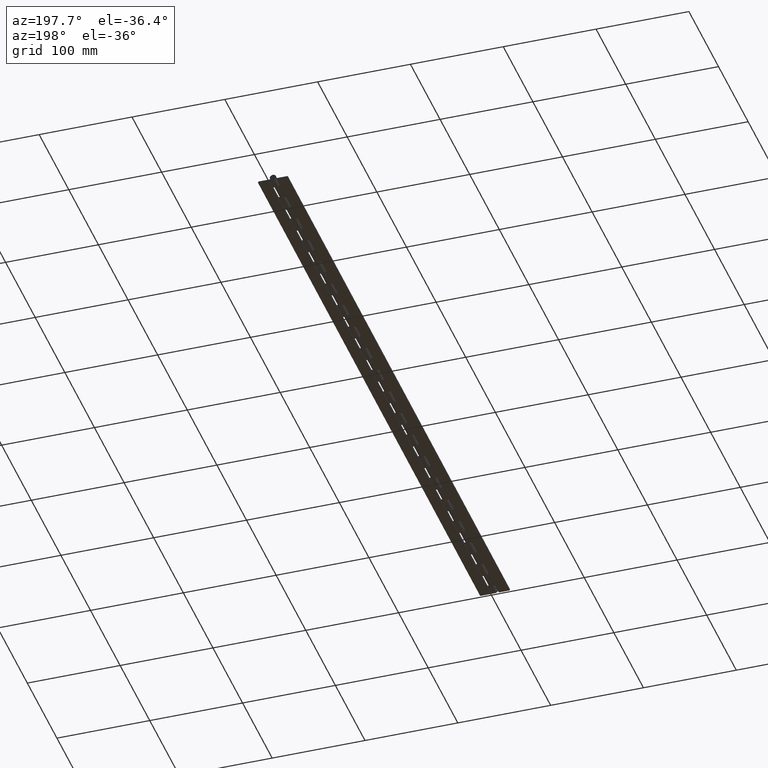
[diagram: clean part render]
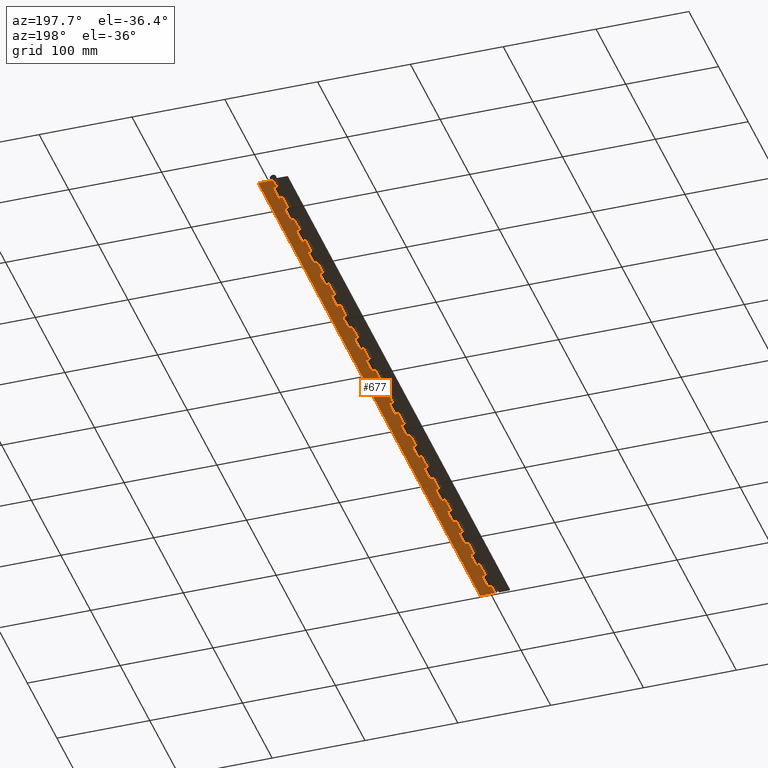
[diagram: same view with one face highlighted and labeled with its STEP entity id]
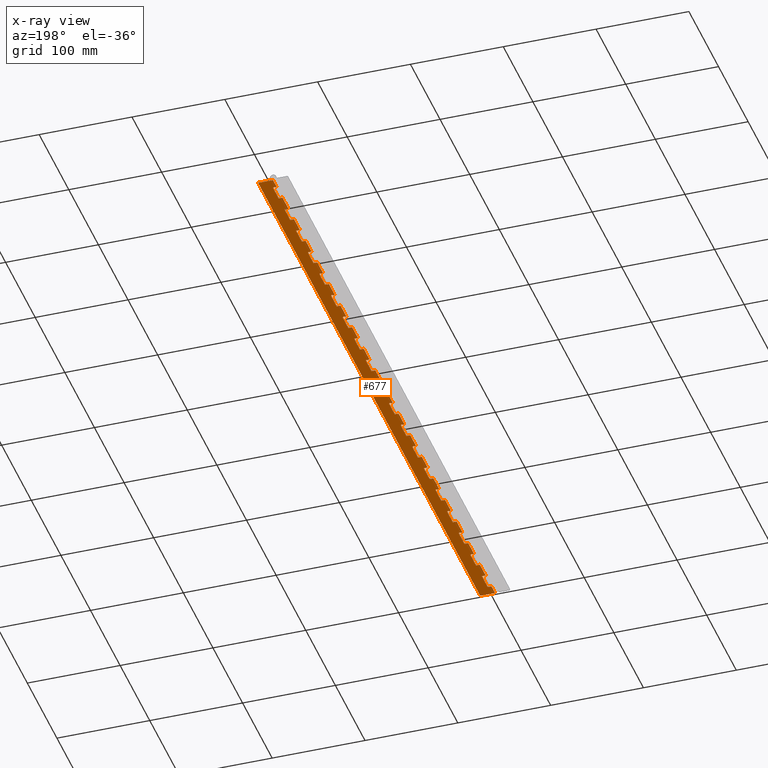
[diagram: x-ray of the same camera — body ghosted, the highlighted face saturated]
A machine part, auxiliary view. The second image highlights one B-rep face of the part: STEP entity #677.
The next image is the same camera in x-ray: the body ghosted, the highlighted face saturated — about 0% of this face is hidden behind the body in this view.
In plain terms, the highlighted planar face has unit normal (0, 0, 1).
Its self-contained STEP definition (entity closure, byte-faithful):
#9 = CARTESIAN_POINT ( 'NONE',  ( 4.000000000000000000, 490.0000000000000600, -3.350002187502757700 ) ) ;
#28 = CARTESIAN_POINT ( 'NONE',  ( -3.350002187502757700, 529.2000000000000500, -3.350002187502757700 ) ) ;
#41 = VECTOR ( 'NONE', #2990, 1000.000000000000000 ) ;
#44 = VECTOR ( 'NONE', #786, 1000.000000000000000 ) ;
#67 = VERTEX_POINT ( 'NONE', #7919 ) ;
#94 = ORIENTED_EDGE ( 'NONE', *, *, #378, .F. ) ;
#99 = VERTEX_POINT ( 'NONE', #8145 ) ;
#107 = DIRECTION ( 'NONE',  ( -0.0000000000000000000, -1.000000000000000000, -0.0000000000000000000 ) ) ;
#117 = EDGE_CURVE ( 'NONE', #5105, #6591, #3216, .T. ) ;
#122 = LINE ( 'NONE', #3463, #3291 ) ;
#130 = CARTESIAN_POINT ( 'NONE',  ( 0.0000000000000000000, 725.2000000000000500, -3.350002187502755900 ) ) ;
#132 = VECTOR ( 'NONE', #3045, 1000.000000000000000 ) ;
#133 = VECTOR ( 'NONE', #2257, 1000.000000000000000 ) ;
#161 = CARTESIAN_POINT ( 'NONE',  ( 0.0000000000000000000, 725.2000000000000500, -3.350002187502755900 ) ) ;
#170 = VERTEX_POINT ( 'NONE', #7888 ) ;
#178 = CARTESIAN_POINT ( 'NONE',  ( 16.00000000000000000, 666.4000000000000900, -3.350002187502757700 ) ) ;
#179 = CARTESIAN_POINT ( 'NONE',  ( -3.350002187502757700, 137.2000000000000200, -3.350002187502757700 ) ) ;
#185 = EDGE_CURVE ( 'NONE', #1284, #5581, #7776, .T. ) ;
#191 = DIRECTION ( 'NONE',  ( -1.000000000000000000, -0.0000000000000000000, -0.0000000000000000000 ) ) ;
#197 = VERTEX_POINT ( 'NONE', #4689 ) ;
#203 = LINE ( 'NONE', #28, #3989 ) ;
#235 = EDGE_CURVE ( 'NONE', #779, #7877, #5644, .T. ) ;
#241 = LINE ( 'NONE', #2359, #41 ) ;
#248 = DIRECTION ( 'NONE',  ( -1.000000000000000000, -0.0000000000000000000, -0.0000000000000000000 ) ) ;
#252 = CARTESIAN_POINT ( 'NONE',  ( 0.0000000000000000000, 725.2000000000000500, -3.350002187502755900 ) ) ;
#261 = VECTOR ( 'NONE', #4199, 1000.000000000000000 ) ;
#262 = EDGE_CURVE ( 'NONE', #4685, #3206, #2222, .T. ) ;
#266 = DIRECTION ( 'NONE',  ( 1.000000000000000000, 0.0000000000000000000, -1.084202172485504400E-016 ) ) ;
#268 = EDGE_CURVE ( 'NONE', #7197, #99, #5432, .T. ) ;
#294 = ORIENTED_EDGE ( 'NONE', *, *, #1095, .T. ) ;
#313 = CARTESIAN_POINT ( 'NONE',  ( 0.0000000000000000000, 725.2000000000000500, -3.350002187502755900 ) ) ;
#358 = VECTOR ( 'NONE', #1997, 1000.000000000000000 ) ;
#378 = EDGE_CURVE ( 'NONE', #67, #6447, #6340, .T. ) ;
#409 = ORIENTED_EDGE ( 'NONE', *, *, #6329, .T. ) ;
#411 = LINE ( 'NONE', #1567, #5299 ) ;
#428 = VECTOR ( 'NONE', #8227, 1000.000000000000000 ) ;
#436 = LINE ( 'NONE', #6008, #1919 ) ;
#446 = VECTOR ( 'NONE', #2661, 1000.000000000000000 ) ;
#450 = CARTESIAN_POINT ( 'NONE',  ( 0.0000000000000000000, 274.4000000000000300, -3.350002187502757700 ) ) ;
#457 = DIRECTION ( 'NONE',  ( 1.000000000000000000, 0.0000000000000000000, -1.084202172485504400E-016 ) ) ;
#460 = VECTOR ( 'NONE', #457, 1000.000000000000000 ) ;
#470 = CARTESIAN_POINT ( 'NONE',  ( 0.0000000000000000000, 0.0000000000000000000, -3.350002187502757700 ) ) ;
#486 = ORIENTED_EDGE ( 'NONE', *, *, #4323, .F. ) ;
#491 = VERTEX_POINT ( 'NONE', #5049 ) ;
#520 = LINE ( 'NONE', #7775, #3708 ) ;
#525 = VERTEX_POINT ( 'NONE', #7872 ) ;
#528 = EDGE_CURVE ( 'NONE', #5847, #8156, #8168, .T. ) ;
#529 = VECTOR ( 'NONE', #107, 1000.000000000000000 ) ;
#560 = DIRECTION ( 'NONE',  ( -0.0000000000000000000, -1.000000000000000000, -0.0000000000000000000 ) ) ;
#567 = LINE ( 'NONE', #890, #7198 ) ;
#597 = VERTEX_POINT ( 'NONE', #3204 ) ;
#642 = ORIENTED_EDGE ( 'NONE', *, *, #7834, .F. ) ;
#654 = LINE ( 'NONE', #6780, #261 ) ;
#677 = ADVANCED_FACE ( 'NONE', ( #5221 ), #5599, .F. ) ;
#717 = CARTESIAN_POINT ( 'NONE',  ( 0.0000000000000000000, 372.4000000000000900, -3.350002187502757700 ) ) ;
#725 = LINE ( 'NONE', #7945, #7579 ) ;
#730 = EDGE_CURVE ( 'NONE', #7492, #1888, #3104, .T. ) ;
#735 = LINE ( 'NONE', #7809, #7389 ) ;
#746 = DIRECTION ( 'NONE',  ( 1.770125995894701000E-016, 1.000000000000000000, -0.0000000000000000000 ) ) ;
#766 = CARTESIAN_POINT ( 'NONE',  ( 0.0000000000000000000, 725.2000000000000500, -3.350002187502755900 ) ) ;
#769 = EDGE_CURVE ( 'NONE', #1523, #6473, #2705, .T. ) ;
#779 = VERTEX_POINT ( 'NONE', #7676 ) ;
#786 = DIRECTION ( 'NONE',  ( -0.0000000000000000000, -1.000000000000000000, -0.0000000000000000000 ) ) ;
#792 = ORIENTED_EDGE ( 'NONE', *, *, #2078, .T. ) ;
#799 = VECTOR ( 'NONE', #266, 1000.000000000000000 ) ;
#817 = CARTESIAN_POINT ( 'NONE',  ( 4.000000000000000000, 19.60000000000000100, -3.350002187502757700 ) ) ;
#826 = VECTOR ( 'NONE', #8035, 1000.000000000000000 ) ;
#832 = CARTESIAN_POINT ( 'NONE',  ( 3.999999999999996400, 627.2000000000000500, -3.350002187502756400 ) ) ;
#836 = VECTOR ( 'NONE', #7599, 1000.000000000000000 ) ;
#844 = VECTOR ( 'NONE', #3941, 1000.000000000000000 ) ;
#884 = CARTESIAN_POINT ( 'NONE',  ( 4.000000000000000000, 19.60000000000000100, -3.350002187502757700 ) ) ;
#890 = CARTESIAN_POINT ( 'NONE',  ( 16.00000000000000000, 156.8000000000000400, -3.350002187502757700 ) ) ;
#911 = ORIENTED_EDGE ( 'NONE', *, *, #1279, .T. ) ;
#936 = VERTEX_POINT ( 'NONE', #3135 ) ;
#951 = CARTESIAN_POINT ( 'NONE',  ( 4.000000000000000000, 686.0000000000000000, -3.350002187502757700 ) ) ;
#974 = DIRECTION ( 'NONE',  ( 1.000000000000000000, 0.0000000000000000000, -1.084202172485504400E-016 ) ) ;
#975 = VERTEX_POINT ( 'NONE', #5905 ) ;
#990 = DIRECTION ( 'NONE',  ( 1.000000000000000000, 0.0000000000000000000, -1.084202172485504400E-016 ) ) ;
#1013 = VERTEX_POINT ( 'NONE', #2239 ) ;
#1014 = VECTOR ( 'NONE', #7023, 1000.000000000000000 ) ;
#1018 = VECTOR ( 'NONE', #6839, 1000.000000000000000 ) ;
#1036 = CARTESIAN_POINT ( 'NONE',  ( -3.350002187502757700, 568.3999999999999800, -3.350002187502757700 ) ) ;
#1037 = VECTOR ( 'NONE', #2485, 1000.000000000000000 ) ;
#1051 = DIRECTION ( 'NONE',  ( -1.000000000000000000, -0.0000000000000000000, -0.0000000000000000000 ) ) ;
#1063 = VERTEX_POINT ( 'NONE', #3361 ) ;
#1064 = VERTEX_POINT ( 'NONE', #3513 ) ;
#1085 = CARTESIAN_POINT ( 'NONE',  ( 3.999999999999996400, 156.8000000000000400, -3.350002187502756400 ) ) ;
#1095 = EDGE_CURVE ( 'NONE', #1149, #6447, #5213, .T. ) ;
#1102 = LINE ( 'NONE', #7959, #2590 ) ;
#1105 = ORIENTED_EDGE ( 'NONE', *, *, #769, .F. ) ;
#1114 = CARTESIAN_POINT ( 'NONE',  ( 0.0000000000000000000, 725.2000000000000500, -3.350002187502755900 ) ) ;
#1118 = VECTOR ( 'NONE', #1276, 1000.000000000000000 ) ;
#1149 = VERTEX_POINT ( 'NONE', #5428 ) ;
#1150 = EDGE_CURVE ( 'NONE', #6512, #6761, #8057, .T. ) ;
#1202 = EDGE_CURVE ( 'NONE', #67, #2339, #1598, .T. ) ;
#1219 = CARTESIAN_POINT ( 'NONE',  ( 4.000000000000000000, 568.3999999999999800, -3.350002187502757700 ) ) ;
#1229 = LINE ( 'NONE', #6541, #6150 ) ;
#1247 = DIRECTION ( 'NONE',  ( 1.770125995894701000E-016, 1.000000000000000000, -0.0000000000000000000 ) ) ;
#1249 = LINE ( 'NONE', #4668, #7497 ) ;
#1250 = EDGE_CURVE ( 'NONE', #5283, #6710, #2306, .T. ) ;
#1261 = LINE ( 'NONE', #4191, #4456 ) ;
#1276 = DIRECTION ( 'NONE',  ( -0.0000000000000000000, -1.000000000000000000, -0.0000000000000000000 ) ) ;
#1279 = EDGE_CURVE ( 'NONE', #6837, #3571, #7245, .T. ) ;
#1284 = VERTEX_POINT ( 'NONE', #951 ) ;
#1296 = CARTESIAN_POINT ( 'NONE',  ( -3.350002187502757700, 725.2000000000000500, -3.350002187502757700 ) ) ;
#1306 = EDGE_CURVE ( 'NONE', #7746, #5581, #1898, .T. ) ;
#1319 = DIRECTION ( 'NONE',  ( 1.770125995894701000E-016, 1.000000000000000000, -0.0000000000000000000 ) ) ;
#1349 = CARTESIAN_POINT ( 'NONE',  ( 4.000000000000000000, 137.2000000000000200, -3.350002187502757700 ) ) ;
#1357 = EDGE_CURVE ( 'NONE', #6710, #1284, #4712, .T. ) ;
#1364 = CARTESIAN_POINT ( 'NONE',  ( 0.0000000000000000000, 39.20000000000000300, -3.350002187502757700 ) ) ;
#1371 = VERTEX_POINT ( 'NONE', #1667 ) ;
#1378 = ORIENTED_EDGE ( 'NONE', *, *, #3376, .T. ) ;
#1396 = CARTESIAN_POINT ( 'NONE',  ( 3.999999999999996400, 705.6000000000001400, -3.350002187502756400 ) ) ;
#1423 = LINE ( 'NONE', #7189, #2915 ) ;
#1426 = EDGE_CURVE ( 'NONE', #597, #7197, #1102, .T. ) ;
#1439 = VERTEX_POINT ( 'NONE', #6789 ) ;
#1445 = LINE ( 'NONE', #7831, #8095 ) ;
#1471 = EDGE_CURVE ( 'NONE', #2703, #3403, #5617, .T. ) ;
#1489 = ORIENTED_EDGE ( 'NONE', *, *, #3255, .T. ) ;
#1499 = VECTOR ( 'NONE', #4186, 1000.000000000000000 ) ;
#1523 = VERTEX_POINT ( 'NONE', #2313 ) ;
#1555 = LINE ( 'NONE', #179, #3046 ) ;
#1567 = CARTESIAN_POINT ( 'NONE',  ( -3.350002187502754100, 0.0000000000000000000, -3.350002187502757700 ) ) ;
#1569 = VERTEX_POINT ( 'NONE', #8231 ) ;
#1576 = VERTEX_POINT ( 'NONE', #6927 ) ;
#1589 = CARTESIAN_POINT ( 'NONE',  ( 4.000000000000000000, 58.80000000000000400, -3.350002187502757700 ) ) ;
#1598 = LINE ( 'NONE', #7371, #6129 ) ;
#1606 = DIRECTION ( 'NONE',  ( -1.000000000000000000, 0.0000000000000000000, 1.084202172485504400E-016 ) ) ;
#1641 = VERTEX_POINT ( 'NONE', #2250 ) ;
#1644 = DIRECTION ( 'NONE',  ( 1.770125995894701000E-016, 1.000000000000000000, -0.0000000000000000000 ) ) ;
#1647 = CARTESIAN_POINT ( 'NONE',  ( 16.00000000000000000, 274.4000000000000300, -3.350002187502757700 ) ) ;
#1667 = CARTESIAN_POINT ( 'NONE',  ( 0.0000000000000000000, 352.8000000000000700, -3.350002187502757700 ) ) ;
#1697 = LINE ( 'NONE', #7630, #8158 ) ;
#1700 = EDGE_CURVE ( 'NONE', #5270, #5105, #411, .T. ) ;
#1742 = EDGE_CURVE ( 'NONE', #5433, #4373, #203, .T. ) ;
#1746 = DIRECTION ( 'NONE',  ( -0.0000000000000000000, -1.000000000000000000, -0.0000000000000000000 ) ) ;
#1820 = DIRECTION ( 'NONE',  ( 1.000000000000000000, 0.0000000000000000000, -1.084202172485504400E-016 ) ) ;
#1826 = LINE ( 'NONE', #3508, #3722 ) ;
#1835 = VECTOR ( 'NONE', #1644, 1000.000000000000000 ) ;
#1837 = ORIENTED_EDGE ( 'NONE', *, *, #235, .T. ) ;
#1847 = VERTEX_POINT ( 'NONE', #8207 ) ;
#1888 = VERTEX_POINT ( 'NONE', #5509 ) ;
#1898 = LINE ( 'NONE', #1114, #5307 ) ;
#1919 = VECTOR ( 'NONE', #4088, 1000.000000000000000 ) ;
#1927 = CARTESIAN_POINT ( 'NONE',  ( 0.0000000000000000000, 725.2000000000000500, -3.350002187502755900 ) ) ;
#1931 = DIRECTION ( 'NONE',  ( -1.000000000000000000, -0.0000000000000000000, -0.0000000000000000000 ) ) ;
#1957 = VECTOR ( 'NONE', #8140, 1000.000000000000000 ) ;
#1969 = CARTESIAN_POINT ( 'NONE',  ( 4.000000000000000000, 529.2000000000000500, -3.350002187502757700 ) ) ;
#1981 = VERTEX_POINT ( 'NONE', #1589 ) ;
#1997 = DIRECTION ( 'NONE',  ( 1.770125995894701000E-016, 1.000000000000000000, -0.0000000000000000000 ) ) ;
#2002 = CARTESIAN_POINT ( 'NONE',  ( 0.0000000000000000000, 215.6000000000000500, -3.350002187502757700 ) ) ;
#2003 = LINE ( 'NONE', #4033, #5218 ) ;
#2017 = VECTOR ( 'NONE', #3779, 1000.000000000000000 ) ;
#2067 = EDGE_CURVE ( 'NONE', #2481, #7877, #4596, .T. ) ;
#2074 = ORIENTED_EDGE ( 'NONE', *, *, #4602, .F. ) ;
#2078 = EDGE_CURVE ( 'NONE', #5712, #779, #2681, .T. ) ;
#2084 = EDGE_CURVE ( 'NONE', #7167, #7492, #6472, .T. ) ;
#2092 = EDGE_LOOP ( 'NONE', ( #2751, #2568, #5738, #5990, #5604, #2729, #2074, #5513, #2143, #8335, #4966, #7138, #5308, #5582, #486, #3615, #2376, #3677, #642, #8328, #911, #7897, #2974, #6058, #3484, #4919, #6900, #6687, #8169, #294, #94, #3633, #6402, #1489, #4145, #6122, #3931, #4397, #1105, #8217, #3056, #6029, #3265, #8039, #3225, #7729, #7251, #7098, #792, #1837, #5202, #5817, #2854, #5878, #7365, #1378, #2675, #2822, #7325, #5036, #7424, #4810, #6360, #4028, #3695, #4163, #5476, #6744, #4176, #3772, #2433, #409, #6334, #4164, #6112, #7690, #6972, #8249, #7004, #6577 ) ) ;
#2106 = CARTESIAN_POINT ( 'NONE',  ( -3.350002187502757700, 411.6000000000000800, -3.350002187502757700 ) ) ;
#2143 = ORIENTED_EDGE ( 'NONE', *, *, #117, .T. ) ;
#2189 = DIRECTION ( 'NONE',  ( 1.770125995894701000E-016, 1.000000000000000000, -0.0000000000000000000 ) ) ;
#2193 = VERTEX_POINT ( 'NONE', #832 ) ;
#2209 = LINE ( 'NONE', #4665, #7359 ) ;
#2222 = LINE ( 'NONE', #2279, #7375 ) ;
#2238 = DIRECTION ( 'NONE',  ( 1.084202172485504400E-016, -0.0000000000000000000, 1.000000000000000000 ) ) ;
#2239 = CARTESIAN_POINT ( 'NONE',  ( 0.0000000000000000000, 98.00000000000001400, -3.350002187502757700 ) ) ;
#2250 = CARTESIAN_POINT ( 'NONE',  ( 0.0000000000000000000, 333.2000000000000500, -3.350002187502757700 ) ) ;
#2257 = DIRECTION ( 'NONE',  ( 1.770125995894701000E-016, 1.000000000000000000, -0.0000000000000000000 ) ) ;
#2273 = CARTESIAN_POINT ( 'NONE',  ( 4.000000000000000000, 98.00000000000001400, -3.350002187502757700 ) ) ;
#2279 = CARTESIAN_POINT ( 'NONE',  ( 16.00000000000000000, 588.0000000000001100, -3.350002187502757700 ) ) ;
#2306 = LINE ( 'NONE', #178, #799 ) ;
#2313 = CARTESIAN_POINT ( 'NONE',  ( 0.0000000000000000000, 313.6000000000000200, -3.350002187502757700 ) ) ;
#2325 = VECTOR ( 'NONE', #6619, 1000.000000000000000 ) ;
#2335 = CARTESIAN_POINT ( 'NONE',  ( 3.999999999999996400, 39.20000000000001000, -3.350002187502756400 ) ) ;
#2339 = VERTEX_POINT ( 'NONE', #5455 ) ;
#2359 = CARTESIAN_POINT ( 'NONE',  ( 16.00000000000000000, 470.4000000000000300, -3.350002187502757700 ) ) ;
#2376 = ORIENTED_EDGE ( 'NONE', *, *, #5242, .T. ) ;
#2385 = CARTESIAN_POINT ( 'NONE',  ( 16.00000000000000000, 352.8000000000000700, -3.350002187502757700 ) ) ;
#2396 = VECTOR ( 'NONE', #5389, 1000.000000000000000 ) ;
#2415 = CARTESIAN_POINT ( 'NONE',  ( -6.153854184092820600E-016, -12.40000000000000000, -3.350002187502755900 ) ) ;
#2417 = LINE ( 'NONE', #5866, #446 ) ;
#2428 = LINE ( 'NONE', #2775, #5654 ) ;
#2433 = ORIENTED_EDGE ( 'NONE', *, *, #2850, .F. ) ;
#2449 = EDGE_CURVE ( 'NONE', #6702, #6837, #3844, .T. ) ;
#2476 = CARTESIAN_POINT ( 'NONE',  ( 3.999999999999996400, 352.8000000000000700, -3.350002187502756400 ) ) ;
#2481 = VERTEX_POINT ( 'NONE', #6216 ) ;
#2485 = DIRECTION ( 'NONE',  ( 1.000000000000000000, 0.0000000000000000000, -1.084202172485504400E-016 ) ) ;
#2568 = ORIENTED_EDGE ( 'NONE', *, *, #7886, .T. ) ;
#2590 = VECTOR ( 'NONE', #6083, 1000.000000000000000 ) ;
#2606 = LINE ( 'NONE', #4607, #1118 ) ;
#2637 = DIRECTION ( 'NONE',  ( 1.770125995894701000E-016, 1.000000000000000000, -0.0000000000000000000 ) ) ;
#2661 = DIRECTION ( 'NONE',  ( -1.000000000000000000, -0.0000000000000000000, -0.0000000000000000000 ) ) ;
#2675 = ORIENTED_EDGE ( 'NONE', *, *, #3060, .T. ) ;
#2680 = CARTESIAN_POINT ( 'NONE',  ( 16.00000000000000000, 509.6000000000000800, -3.350002187502757700 ) ) ;
#2681 = LINE ( 'NONE', #8104, #3246 ) ;
#2686 = VERTEX_POINT ( 'NONE', #717 ) ;
#2691 = EDGE_CURVE ( 'NONE', #4577, #1149, #3322, .T. ) ;
#2695 = DIRECTION ( 'NONE',  ( 1.770125995894701000E-016, 1.000000000000000000, -0.0000000000000000000 ) ) ;
#2703 = VERTEX_POINT ( 'NONE', #1364 ) ;
#2705 = LINE ( 'NONE', #7817, #1014 ) ;
#2712 = LINE ( 'NONE', #3590, #1018 ) ;
#2729 = ORIENTED_EDGE ( 'NONE', *, *, #7244, .F. ) ;
#2740 = LINE ( 'NONE', #6173, #4255 ) ;
#2746 = EDGE_CURVE ( 'NONE', #6383, #8156, #1445, .T. ) ;
#2751 = ORIENTED_EDGE ( 'NONE', *, *, #1150, .T. ) ;
#2755 = EDGE_CURVE ( 'NONE', #6107, #7047, #3130, .T. ) ;
#2775 = CARTESIAN_POINT ( 'NONE',  ( 4.000000000000000000, 333.2000000000000500, -3.350002187502757700 ) ) ;
#2805 = VECTOR ( 'NONE', #3805, 1000.000000000000000 ) ;
#2820 = EDGE_CURVE ( 'NONE', #3577, #5712, #1249, .T. ) ;
#2822 = ORIENTED_EDGE ( 'NONE', *, *, #2746, .T. ) ;
#2850 = EDGE_CURVE ( 'NONE', #3690, #1439, #4034, .T. ) ;
#2854 = ORIENTED_EDGE ( 'NONE', *, *, #7076, .T. ) ;
#2911 = VECTOR ( 'NONE', #7131, 1000.000000000000000 ) ;
#2915 = VECTOR ( 'NONE', #3951, 1000.000000000000000 ) ;
#2918 = CARTESIAN_POINT ( 'NONE',  ( 3.999999999999996400, 666.4000000000000900, -3.350002187502756400 ) ) ;
#2926 = LINE ( 'NONE', #6337, #5942 ) ;
#2931 = VECTOR ( 'NONE', #4611, 1000.000000000000000 ) ;
#2953 = DIRECTION ( 'NONE',  ( 1.770125995894701000E-016, 1.000000000000000000, -0.0000000000000000000 ) ) ;
#2969 = VERTEX_POINT ( 'NONE', #7706 ) ;
#2974 = ORIENTED_EDGE ( 'NONE', *, *, #2755, .F. ) ;
#2990 = DIRECTION ( 'NONE',  ( 1.000000000000000000, 0.0000000000000000000, -1.084202172485504400E-016 ) ) ;
#2993 = LINE ( 'NONE', #5082, #4509 ) ;
#3007 = VECTOR ( 'NONE', #6157, 1000.000000000000000 ) ;
#3027 = CARTESIAN_POINT ( 'NONE',  ( 3.999999999999996400, 117.6000000000000400, -3.350002187502756400 ) ) ;
#3045 = DIRECTION ( 'NONE',  ( -0.0000000000000000000, -1.000000000000000000, -0.0000000000000000000 ) ) ;
#3046 = VECTOR ( 'NONE', #3993, 1000.000000000000000 ) ;
#3056 = ORIENTED_EDGE ( 'NONE', *, *, #6576, .T. ) ;
#3060 = EDGE_CURVE ( 'NONE', #491, #6383, #735, .T. ) ;
#3098 = CARTESIAN_POINT ( 'NONE',  ( 0.0000000000000000000, 254.8000000000000400, -3.350002187502757700 ) ) ;
#3104 = LINE ( 'NONE', #5457, #6335 ) ;
#3130 = LINE ( 'NONE', #766, #2931 ) ;
#3135 = CARTESIAN_POINT ( 'NONE',  ( 3.999999999999996400, 78.40000000000002000, -3.350002187502756400 ) ) ;
#3183 = CARTESIAN_POINT ( 'NONE',  ( 0.0000000000000000000, 196.0000000000000300, -3.350002187502757700 ) ) ;
#3204 = CARTESIAN_POINT ( 'NONE',  ( 0.0000000000000000000, 548.8000000000000700, -3.350002187502757700 ) ) ;
#3206 = VERTEX_POINT ( 'NONE', #3443 ) ;
#3216 = LINE ( 'NONE', #817, #4739 ) ;
#3225 = ORIENTED_EDGE ( 'NONE', *, *, #5632, .T. ) ;
#3246 = VECTOR ( 'NONE', #4908, 1000.000000000000000 ) ;
#3255 = EDGE_CURVE ( 'NONE', #4410, #5810, #6156, .T. ) ;
#3265 = ORIENTED_EDGE ( 'NONE', *, *, #4048, .F. ) ;
#3270 = DIRECTION ( 'NONE',  ( 1.000000000000000000, 0.0000000000000000000, 0.0000000000000000000 ) ) ;
#3291 = VECTOR ( 'NONE', #8001, 1000.000000000000000 ) ;
#3322 = LINE ( 'NONE', #5849, #358 ) ;
#3361 = CARTESIAN_POINT ( 'NONE',  ( 4.000000000000000000, 176.4000000000000300, -3.350002187502757700 ) ) ;
#3376 = EDGE_CURVE ( 'NONE', #1576, #491, #241, .T. ) ;
#3403 = VERTEX_POINT ( 'NONE', #3645 ) ;
#3406 = LINE ( 'NONE', #8307, #7970 ) ;
#3443 = CARTESIAN_POINT ( 'NONE',  ( 3.999999999999996400, 588.0000000000001100, -3.350002187502756400 ) ) ;
#3463 = CARTESIAN_POINT ( 'NONE',  ( -3.350002187502757700, 607.6000000000000200, -3.350002187502757700 ) ) ;
#3484 = ORIENTED_EDGE ( 'NONE', *, *, #6242, .T. ) ;
#3508 = CARTESIAN_POINT ( 'NONE',  ( 16.00000000000000000, 737.6000000000000200, -3.350002187502757700 ) ) ;
#3513 = CARTESIAN_POINT ( 'NONE',  ( 4.000000000000000000, 372.4000000000000900, -3.350002187502757700 ) ) ;
#3514 = LINE ( 'NONE', #6721, #133 ) ;
#3524 = EDGE_CURVE ( 'NONE', #5280, #7348, #725, .T. ) ;
#3568 = CARTESIAN_POINT ( 'NONE',  ( 4.000000000000000000, 686.0000000000000000, -3.350002187502757700 ) ) ;
#3571 = VERTEX_POINT ( 'NONE', #7358 ) ;
#3573 = VERTEX_POINT ( 'NONE', #8009 ) ;
#3577 = VERTEX_POINT ( 'NONE', #5418 ) ;
#3590 = CARTESIAN_POINT ( 'NONE',  ( 16.00000000000000000, 313.6000000000000200, -3.350002187502757700 ) ) ;
#3595 = CARTESIAN_POINT ( 'NONE',  ( 4.000000000000000000, 725.2000000000000500, -3.350002187502757700 ) ) ;
#3615 = ORIENTED_EDGE ( 'NONE', *, *, #4265, .T. ) ;
#3625 = CARTESIAN_POINT ( 'NONE',  ( 16.00000000000000000, 117.6000000000000400, -3.350002187502757700 ) ) ;
#3627 = DIRECTION ( 'NONE',  ( 1.770125995894701000E-016, 1.000000000000000000, -0.0000000000000000000 ) ) ;
#3631 = LINE ( 'NONE', #4533, #6863 ) ;
#3633 = ORIENTED_EDGE ( 'NONE', *, *, #1202, .T. ) ;
#3645 = CARTESIAN_POINT ( 'NONE',  ( 0.0000000000000000000, 19.60000000000000100, -3.350002187502757700 ) ) ;
#3647 = CARTESIAN_POINT ( 'NONE',  ( 3.999999999999996400, 548.8000000000000700, -3.350002187502756400 ) ) ;
#3656 = LINE ( 'NONE', #6182, #1957 ) ;
#3664 = CARTESIAN_POINT ( 'NONE',  ( 4.000000000000000000, 646.8000000000000700, -3.350002187502757700 ) ) ;
#3677 = ORIENTED_EDGE ( 'NONE', *, *, #4485, .T. ) ;
#3690 = VERTEX_POINT ( 'NONE', #7475 ) ;
#3695 = ORIENTED_EDGE ( 'NONE', *, *, #268, .T. ) ;
#3701 = VECTOR ( 'NONE', #4537, 1000.000000000000000 ) ;
#3702 = VERTEX_POINT ( 'NONE', #4893 ) ;
#3708 = VECTOR ( 'NONE', #248, 1000.000000000000000 ) ;
#3722 = VECTOR ( 'NONE', #1606, 1000.000000000000000 ) ;
#3760 = CARTESIAN_POINT ( 'NONE',  ( 16.00000000000000000, 627.2000000000000500, -3.350002187502757700 ) ) ;
#3770 = CARTESIAN_POINT ( 'NONE',  ( 4.000000000000000000, 58.80000000000000400, -3.350002187502757700 ) ) ;
#3772 = ORIENTED_EDGE ( 'NONE', *, *, #7539, .T. ) ;
#3779 = DIRECTION ( 'NONE',  ( 1.770125995894701000E-016, 1.000000000000000000, -0.0000000000000000000 ) ) ;
#3805 = DIRECTION ( 'NONE',  ( -0.0000000000000000000, -1.000000000000000000, -0.0000000000000000000 ) ) ;
#3809 = LINE ( 'NONE', #2385, #428 ) ;
#3817 = EDGE_CURVE ( 'NONE', #7167, #5810, #5138, .T. ) ;
#3844 = LINE ( 'NONE', #3625, #460 ) ;
#3846 = LINE ( 'NONE', #2680, #7096 ) ;
#3866 = VERTEX_POINT ( 'NONE', #4429 ) ;
#3867 = EDGE_CURVE ( 'NONE', #4748, #4577, #3406, .T. ) ;
#3874 = EDGE_CURVE ( 'NONE', #5283, #7348, #6239, .T. ) ;
#3897 = LINE ( 'NONE', #1296, #7351 ) ;
#3910 = VECTOR ( 'NONE', #2637, 1000.000000000000000 ) ;
#3931 = ORIENTED_EDGE ( 'NONE', *, *, #730, .T. ) ;
#3941 = DIRECTION ( 'NONE',  ( -0.0000000000000000000, -1.000000000000000000, -0.0000000000000000000 ) ) ;
#3951 = DIRECTION ( 'NONE',  ( 1.000000000000000000, 0.0000000000000000000, -1.084202172485504400E-016 ) ) ;
#3957 = EDGE_CURVE ( 'NONE', #3573, #5433, #5641, .T. ) ;
#3975 = EDGE_CURVE ( 'NONE', #597, #4373, #7368, .T. ) ;
#3989 = VECTOR ( 'NONE', #5016, 1000.000000000000000 ) ;
#3993 = DIRECTION ( 'NONE',  ( -1.000000000000000000, -0.0000000000000000000, -0.0000000000000000000 ) ) ;
#3999 = EDGE_CURVE ( 'NONE', #1064, #2686, #2417, .T. ) ;
#4010 = LINE ( 'NONE', #2415, #7259 ) ;
#4028 = ORIENTED_EDGE ( 'NONE', *, *, #1426, .T. ) ;
#4034 = LINE ( 'NONE', #4353, #836 ) ;
#4033 = CARTESIAN_POINT ( 'NONE',  ( -3.350002187502757700, 176.4000000000000300, -3.350002187502757700 ) ) ;
#4048 = EDGE_CURVE ( 'NONE', #1371, #1641, #5149, .T. ) ;
#4066 = CARTESIAN_POINT ( 'NONE',  ( 0.0000000000000000000, 725.2000000000000500, -3.350002187502757700 ) ) ;
#4088 = DIRECTION ( 'NONE',  ( -1.000000000000000000, -0.0000000000000000000, -0.0000000000000000000 ) ) ;
#4145 = ORIENTED_EDGE ( 'NONE', *, *, #3817, .F. ) ;
#4151 = CARTESIAN_POINT ( 'NONE',  ( -3.350002187502757700, 254.8000000000000400, -3.350002187502757700 ) ) ;
#4163 = ORIENTED_EDGE ( 'NONE', *, *, #8287, .T. ) ;
#4164 = ORIENTED_EDGE ( 'NONE', *, *, #3524, .T. ) ;
#4176 = ORIENTED_EDGE ( 'NONE', *, *, #8282, .T. ) ;
#4186 = DIRECTION ( 'NONE',  ( 1.770125995894701000E-016, 1.000000000000000000, -0.0000000000000000000 ) ) ;
#4191 = CARTESIAN_POINT ( 'NONE',  ( 16.00000000000000000, 431.2000000000001000, -3.350002187502757700 ) ) ;
#4199 = DIRECTION ( 'NONE',  ( 1.770125995894701000E-016, 1.000000000000000000, -0.0000000000000000000 ) ) ;
#4252 = LINE ( 'NONE', #130, #844 ) ;
#4255 = VECTOR ( 'NONE', #2953, 1000.000000000000000 ) ;
#4265 = EDGE_CURVE ( 'NONE', #8008, #936, #1423, .T. ) ;
#4274 = EDGE_CURVE ( 'NONE', #2193, #5280, #1229, .T. ) ;
#4323 = EDGE_CURVE ( 'NONE', #8008, #5448, #7678, .T. ) ;
#4335 = DIRECTION ( 'NONE',  ( -0.0000000000000000000, -1.000000000000000000, -0.0000000000000000000 ) ) ;
#4344 = DIRECTION ( 'NONE',  ( 1.000000000000000000, 0.0000000000000000000, -1.084202172485504400E-016 ) ) ;
#4346 = EDGE_CURVE ( 'NONE', #975, #197, #5747, .T. ) ;
#4353 = CARTESIAN_POINT ( 'NONE',  ( 0.0000000000000000000, 725.2000000000000500, -3.350002187502755900 ) ) ;
#4370 = CARTESIAN_POINT ( 'NONE',  ( 0.0000000000000000000, 725.2000000000000500, -3.350002187502755900 ) ) ;
#4373 = VERTEX_POINT ( 'NONE', #6654 ) ;
#4375 = EDGE_CURVE ( 'NONE', #1981, #5448, #436, .T. ) ;
#4397 = ORIENTED_EDGE ( 'NONE', *, *, #7483, .T. ) ;
#4410 = VERTEX_POINT ( 'NONE', #8004 ) ;
#4412 = VECTOR ( 'NONE', #1247, 1000.000000000000000 ) ;
#4429 = CARTESIAN_POINT ( 'NONE',  ( 0.0000000000000000000, 176.4000000000000300, -3.350002187502757700 ) ) ;
#4442 = EDGE_CURVE ( 'NONE', #2339, #4410, #8175, .T. ) ;
#4456 = VECTOR ( 'NONE', #6799, 1000.000000000000000 ) ;
#4476 = CARTESIAN_POINT ( 'NONE',  ( 0.0000000000000000000, 411.6000000000000800, -3.350002187502757700 ) ) ;
#4485 = EDGE_CURVE ( 'NONE', #5622, #1013, #4529, .T. ) ;
#4509 = VECTOR ( 'NONE', #5723, 1000.000000000000000 ) ;
#4529 = LINE ( 'NONE', #6808, #3007 ) ;
#4533 = CARTESIAN_POINT ( 'NONE',  ( 0.0000000000000000000, 725.2000000000000500, -3.350002187502755900 ) ) ;
#4537 = DIRECTION ( 'NONE',  ( -1.000000000000000000, -0.0000000000000000000, -0.0000000000000000000 ) ) ;
#4577 = VERTEX_POINT ( 'NONE', #8200 ) ;
#4596 = LINE ( 'NONE', #6224, #6670 ) ;
#4602 = EDGE_CURVE ( 'NONE', #5270, #2969, #6954, .T. ) ;
#4607 = CARTESIAN_POINT ( 'NONE',  ( 0.0000000000000000000, 725.2000000000000500, -3.350002187502755900 ) ) ;
#4611 = DIRECTION ( 'NONE',  ( -0.0000000000000000000, -1.000000000000000000, -0.0000000000000000000 ) ) ;
#4652 = DIRECTION ( 'NONE',  ( -0.0000000000000000000, -1.000000000000000000, -0.0000000000000000000 ) ) ;
#4665 = CARTESIAN_POINT ( 'NONE',  ( -3.350002187502757700, 450.8000000000000700, -3.350002187502757700 ) ) ;
#4668 = CARTESIAN_POINT ( 'NONE',  ( 16.00000000000000000, 392.0000000000000600, -3.350002187502757700 ) ) ;
#4680 = CARTESIAN_POINT ( 'NONE',  ( -3.350002187502757700, 215.6000000000000500, -3.350002187502757700 ) ) ;
#4685 = VERTEX_POINT ( 'NONE', #6320 ) ;
#4689 = CARTESIAN_POINT ( 'NONE',  ( 16.00000000000000000, -12.40000000000000000, -3.350002187502757700 ) ) ;
#4693 = CARTESIAN_POINT ( 'NONE',  ( 0.0000000000000000000, 725.2000000000000500, -3.350002187502755900 ) ) ;
#4709 = EDGE_CURVE ( 'NONE', #7178, #1981, #6338, .T. ) ;
#4712 = LINE ( 'NONE', #3568, #1499 ) ;
#4739 = VECTOR ( 'NONE', #2189, 1000.000000000000000 ) ;
#4748 = VERTEX_POINT ( 'NONE', #3183 ) ;
#4752 = DIRECTION ( 'NONE',  ( -0.0000000000000000000, -1.000000000000000000, -0.0000000000000000000 ) ) ;
#4774 = VECTOR ( 'NONE', #6737, 1000.000000000000000 ) ;
#4810 = ORIENTED_EDGE ( 'NONE', *, *, #1742, .T. ) ;
#4856 = VECTOR ( 'NONE', #4335, 1000.000000000000000 ) ;
#4893 = CARTESIAN_POINT ( 'NONE',  ( 3.999999999999996400, 313.6000000000000200, -3.350002187502756400 ) ) ;
#4908 = DIRECTION ( 'NONE',  ( 1.770125995894701000E-016, 1.000000000000000000, -0.0000000000000000000 ) ) ;
#4913 = CARTESIAN_POINT ( 'NONE',  ( 3.999999999999996400, 392.0000000000000600, -3.350002187502756400 ) ) ;
#4919 = ORIENTED_EDGE ( 'NONE', *, *, #5071, .T. ) ;
#4966 = ORIENTED_EDGE ( 'NONE', *, *, #1471, .F. ) ;
#4975 = EDGE_CURVE ( 'NONE', #4748, #3866, #2606, .T. ) ;
#4981 = CARTESIAN_POINT ( 'NONE',  ( 0.0000000000000000000, 666.4000000000000900, -3.350002187502757700 ) ) ;
#5016 = DIRECTION ( 'NONE',  ( -1.000000000000000000, -0.0000000000000000000, -0.0000000000000000000 ) ) ;
#5023 = EDGE_CURVE ( 'NONE', #1847, #525, #2209, .T. ) ;
#5036 = ORIENTED_EDGE ( 'NONE', *, *, #5583, .T. ) ;
#5043 = LINE ( 'NONE', #6131, #6142 ) ;
#5049 = CARTESIAN_POINT ( 'NONE',  ( 3.999999999999996400, 470.4000000000000300, -3.350002187502756400 ) ) ;
#5057 = LINE ( 'NONE', #6256, #1835 ) ;
#5071 = EDGE_CURVE ( 'NONE', #1063, #3866, #2003, .T. ) ;
#5082 = CARTESIAN_POINT ( 'NONE',  ( 0.0000000000000000000, 725.2000000000000500, -3.350002187502755900 ) ) ;
#5091 = DIRECTION ( 'NONE',  ( 1.000000000000000000, 0.0000000000000000000, -1.084202172485504400E-016 ) ) ;
#5103 = EDGE_CURVE ( 'NONE', #5295, #6578, #6738, .T. ) ;
#5105 = VERTEX_POINT ( 'NONE', #6652 ) ;
#5120 = CARTESIAN_POINT ( 'NONE',  ( 0.0000000000000000000, 646.8000000000000700, -3.350002187502757700 ) ) ;
#5138 = LINE ( 'NONE', #4370, #5535 ) ;
#5149 = LINE ( 'NONE', #161, #44 ) ;
#5202 = ORIENTED_EDGE ( 'NONE', *, *, #2067, .F. ) ;
#5213 = LINE ( 'NONE', #4680, #3701 ) ;
#5218 = VECTOR ( 'NONE', #7941, 1000.000000000000000 ) ;
#5221 = FACE_OUTER_BOUND ( 'NONE', #2092, .T. ) ;
#5232 = CARTESIAN_POINT ( 'NONE',  ( 0.0000000000000000000, 294.0000000000000600, -3.350002187502757700 ) ) ;
#5242 = EDGE_CURVE ( 'NONE', #936, #5622, #3656, .T. ) ;
#5253 = DIRECTION ( 'NONE',  ( -1.000000000000000000, -0.0000000000000000000, -0.0000000000000000000 ) ) ;
#5270 = VERTEX_POINT ( 'NONE', #470 ) ;
#5271 = DIRECTION ( 'NONE',  ( 1.000000000000000000, 0.0000000000000000000, -1.084202172485504400E-016 ) ) ;
#5280 = VERTEX_POINT ( 'NONE', #3664 ) ;
#5283 = VERTEX_POINT ( 'NONE', #4981 ) ;
#5285 = CARTESIAN_POINT ( 'NONE',  ( 4.000000000000000000, 725.2000000000000500, -3.350002187502757700 ) ) ;
#5295 = VERTEX_POINT ( 'NONE', #6945 ) ;
#5299 = VECTOR ( 'NONE', #3270, 1000.000000000000000 ) ;
#5307 = VECTOR ( 'NONE', #1746, 1000.000000000000000 ) ;
#5308 = ORIENTED_EDGE ( 'NONE', *, *, #4709, .T. ) ;
#5313 = DIRECTION ( 'NONE',  ( 1.770125995894701000E-016, 1.000000000000000000, -0.0000000000000000000 ) ) ;
#5357 = CARTESIAN_POINT ( 'NONE',  ( -3.350002187502757700, 686.0000000000000000, -3.350002187502757700 ) ) ;
#5382 = DIRECTION ( 'NONE',  ( -1.000000000000000000, -0.0000000000000000000, -0.0000000000000000000 ) ) ;
#5389 = DIRECTION ( 'NONE',  ( -0.0000000000000000000, -1.000000000000000000, -0.0000000000000000000 ) ) ;
#5400 = CARTESIAN_POINT ( 'NONE',  ( 0.0000000000000000000, 490.0000000000000600, -3.350002187502757700 ) ) ;
#5418 = CARTESIAN_POINT ( 'NONE',  ( 0.0000000000000000000, 392.0000000000000600, -3.350002187502757700 ) ) ;
#5428 = CARTESIAN_POINT ( 'NONE',  ( 4.000000000000000000, 215.6000000000000500, -3.350002187502757700 ) ) ;
#5432 = LINE ( 'NONE', #1219, #2017 ) ;
#5433 = VERTEX_POINT ( 'NONE', #5783 ) ;
#5448 = VERTEX_POINT ( 'NONE', #7099 ) ;
#5455 = CARTESIAN_POINT ( 'NONE',  ( 3.999999999999996400, 235.2000000000000200, -3.350002187502756400 ) ) ;
#5457 = CARTESIAN_POINT ( 'NONE',  ( 4.000000000000000000, 294.0000000000000600, -3.350002187502757700 ) ) ;
#5459 = CARTESIAN_POINT ( 'NONE',  ( 4.000000000000000000, 333.2000000000000500, -3.350002187502757700 ) ) ;
#5476 = ORIENTED_EDGE ( 'NONE', *, *, #6425, .F. ) ;
#5509 = CARTESIAN_POINT ( 'NONE',  ( 4.000000000000000000, 294.0000000000000600, -3.350002187502757700 ) ) ;
#5513 = ORIENTED_EDGE ( 'NONE', *, *, #1700, .T. ) ;
#5535 = VECTOR ( 'NONE', #560, 1000.000000000000000 ) ;
#5552 = EDGE_CURVE ( 'NONE', #1576, #525, #4252, .T. ) ;
#5581 = VERTEX_POINT ( 'NONE', #7852 ) ;
#5582 = ORIENTED_EDGE ( 'NONE', *, *, #4375, .T. ) ;
#5583 = EDGE_CURVE ( 'NONE', #5847, #3573, #3846, .T. ) ;
#5599 = PLANE ( 'NONE',  #6074 ) ;
#5604 = ORIENTED_EDGE ( 'NONE', *, *, #4346, .T. ) ;
#5617 = LINE ( 'NONE', #313, #2396 ) ;
#5622 = VERTEX_POINT ( 'NONE', #2273 ) ;
#5632 = EDGE_CURVE ( 'NONE', #6920, #1064, #654, .T. ) ;
#5641 = LINE ( 'NONE', #1969, #3910 ) ;
#5644 = LINE ( 'NONE', #2106, #6036 ) ;
#5654 = VECTOR ( 'NONE', #5982, 1000.000000000000000 ) ;
#5668 = CARTESIAN_POINT ( 'NONE',  ( 0.0000000000000000000, 725.2000000000000500, -3.350002187502755900 ) ) ;
#5712 = VERTEX_POINT ( 'NONE', #4913 ) ;
#5723 = DIRECTION ( 'NONE',  ( -0.0000000000000000000, -1.000000000000000000, -0.0000000000000000000 ) ) ;
#5738 = ORIENTED_EDGE ( 'NONE', *, *, #5103, .F. ) ;
#5747 = LINE ( 'NONE', #7299, #6348 ) ;
#5783 = CARTESIAN_POINT ( 'NONE',  ( 4.000000000000000000, 529.2000000000000500, -3.350002187502757700 ) ) ;
#5797 = DIRECTION ( 'NONE',  ( -0.0000000000000000000, -1.000000000000000000, -0.0000000000000000000 ) ) ;
#5810 = VERTEX_POINT ( 'NONE', #3098 ) ;
#5817 = ORIENTED_EDGE ( 'NONE', *, *, #8255, .T. ) ;
#5847 = VERTEX_POINT ( 'NONE', #8300 ) ;
#5849 = CARTESIAN_POINT ( 'NONE',  ( 4.000000000000000000, 215.6000000000000500, -3.350002187502757700 ) ) ;
#5866 = CARTESIAN_POINT ( 'NONE',  ( -3.350002187502757700, 372.4000000000000900, -3.350002187502757700 ) ) ;
#5878 = ORIENTED_EDGE ( 'NONE', *, *, #5023, .T. ) ;
#5883 = CARTESIAN_POINT ( 'NONE',  ( 0.0000000000000000000, 78.40000000000000600, -3.350002187502757700 ) ) ;
#5905 = CARTESIAN_POINT ( 'NONE',  ( 16.00000000000000000, 737.6000000000000200, -3.350002187502757700 ) ) ;
#5942 = VECTOR ( 'NONE', #7656, 1000.000000000000000 ) ;
#5963 = LINE ( 'NONE', #1036, #7709 ) ;
#5982 = DIRECTION ( 'NONE',  ( 1.770125995894701000E-016, 1.000000000000000000, -0.0000000000000000000 ) ) ;
#5990 = ORIENTED_EDGE ( 'NONE', *, *, #6677, .F. ) ;
#6001 = CARTESIAN_POINT ( 'NONE',  ( 3.999999999999996400, 274.4000000000000300, -3.350002187502756400 ) ) ;
#6008 = CARTESIAN_POINT ( 'NONE',  ( -3.350002187502757700, 58.80000000000000400, -3.350002187502757700 ) ) ;
#6023 = DIRECTION ( 'NONE',  ( 1.000000000000000000, 0.0000000000000000000, -1.084202172485504400E-016 ) ) ;
#6029 = ORIENTED_EDGE ( 'NONE', *, *, #7145, .T. ) ;
#6036 = VECTOR ( 'NONE', #5382, 1000.000000000000000 ) ;
#6054 = LINE ( 'NONE', #6116, #6971 ) ;
#6058 = ORIENTED_EDGE ( 'NONE', *, *, #8134, .T. ) ;
#6074 = AXIS2_PLACEMENT_3D ( 'NONE', #7431, #2238, #974 ) ;
#6083 = DIRECTION ( 'NONE',  ( 1.000000000000000000, 0.0000000000000000000, -1.084202172485504400E-016 ) ) ;
#6107 = VERTEX_POINT ( 'NONE', #7289 ) ;
#6112 = ORIENTED_EDGE ( 'NONE', *, *, #3874, .F. ) ;
#6116 = CARTESIAN_POINT ( 'NONE',  ( -3.350002187502757700, 19.60000000000000100, -3.350002187502757700 ) ) ;
#6122 = ORIENTED_EDGE ( 'NONE', *, *, #2084, .T. ) ;
#6129 = VECTOR ( 'NONE', #7403, 1000.000000000000000 ) ;
#6131 = CARTESIAN_POINT ( 'NONE',  ( -3.350002187502757700, 333.2000000000000500, -3.350002187502757700 ) ) ;
#6142 = VECTOR ( 'NONE', #1051, 1000.000000000000000 ) ;
#6150 = VECTOR ( 'NONE', #2695, 1000.000000000000000 ) ;
#6156 = LINE ( 'NONE', #4151, #826 ) ;
#6157 = DIRECTION ( 'NONE',  ( -1.000000000000000000, -0.0000000000000000000, -0.0000000000000000000 ) ) ;
#6173 = CARTESIAN_POINT ( 'NONE',  ( 4.000000000000000000, 607.6000000000000200, -3.350002187502757700 ) ) ;
#6182 = CARTESIAN_POINT ( 'NONE',  ( 4.000000000000000000, 98.00000000000001400, -3.350002187502757700 ) ) ;
#6203 = VERTEX_POINT ( 'NONE', #5459 ) ;
#6208 = EDGE_CURVE ( 'NONE', #6591, #3403, #6054, .T. ) ;
#6216 = CARTESIAN_POINT ( 'NONE',  ( 0.0000000000000000000, 431.2000000000001000, -3.350002187502757700 ) ) ;
#6224 = CARTESIAN_POINT ( 'NONE',  ( 0.0000000000000000000, 725.2000000000000500, -3.350002187502755900 ) ) ;
#6239 = LINE ( 'NONE', #7045, #2805 ) ;
#6242 = EDGE_CURVE ( 'NONE', #6812, #1063, #5057, .T. ) ;
#6245 = VECTOR ( 'NONE', #6650, 1000.000000000000000 ) ;
#6256 = CARTESIAN_POINT ( 'NONE',  ( 4.000000000000000000, 176.4000000000000300, -3.350002187502757700 ) ) ;
#6257 = EDGE_CURVE ( 'NONE', #3577, #2686, #6549, .T. ) ;
#6320 = CARTESIAN_POINT ( 'NONE',  ( 0.0000000000000000000, 588.0000000000001100, -3.350002187502757700 ) ) ;
#6323 = EDGE_CURVE ( 'NONE', #2703, #7178, #2926, .T. ) ;
#6326 = VECTOR ( 'NONE', #5313, 1000.000000000000000 ) ;
#6329 = EDGE_CURVE ( 'NONE', #3690, #2193, #7882, .T. ) ;
#6334 = ORIENTED_EDGE ( 'NONE', *, *, #4274, .T. ) ;
#6335 = VECTOR ( 'NONE', #3627, 1000.000000000000000 ) ;
#6337 = CARTESIAN_POINT ( 'NONE',  ( 16.00000000000000000, 39.20000000000001000, -3.350002187502757700 ) ) ;
#6338 = LINE ( 'NONE', #3770, #4412 ) ;
#6340 = LINE ( 'NONE', #5668, #2911 ) ;
#6348 = VECTOR ( 'NONE', #7942, 1000.000000000000000 ) ;
#6360 = ORIENTED_EDGE ( 'NONE', *, *, #3975, .F. ) ;
#6383 = VERTEX_POINT ( 'NONE', #9 ) ;
#6402 = ORIENTED_EDGE ( 'NONE', *, *, #4442, .T. ) ;
#6425 = EDGE_CURVE ( 'NONE', #4685, #1569, #3631, .T. ) ;
#6435 = VECTOR ( 'NONE', #4652, 1000.000000000000000 ) ;
#6444 = VECTOR ( 'NONE', #7417, 1000.000000000000000 ) ;
#6447 = VERTEX_POINT ( 'NONE', #2002 ) ;
#6472 = LINE ( 'NONE', #1647, #4774 ) ;
#6473 = VERTEX_POINT ( 'NONE', #5232 ) ;
#6483 = CARTESIAN_POINT ( 'NONE',  ( 4.000000000000000000, 607.6000000000000200, -3.350002187502757700 ) ) ;
#6512 = VERTEX_POINT ( 'NONE', #1396 ) ;
#6541 = CARTESIAN_POINT ( 'NONE',  ( 4.000000000000000000, 646.8000000000000700, -3.350002187502757700 ) ) ;
#6549 = LINE ( 'NONE', #6909, #4856 ) ;
#6576 = EDGE_CURVE ( 'NONE', #3702, #6203, #2428, .T. ) ;
#6577 = ORIENTED_EDGE ( 'NONE', *, *, #7779, .T. ) ;
#6578 = VERTEX_POINT ( 'NONE', #4066 ) ;
#6591 = VERTEX_POINT ( 'NONE', #884 ) ;
#6619 = DIRECTION ( 'NONE',  ( -0.0000000000000000000, -1.000000000000000000, -0.0000000000000000000 ) ) ;
#6642 = DIRECTION ( 'NONE',  ( -0.0000000000000000000, -1.000000000000000000, -0.0000000000000000000 ) ) ;
#6650 = DIRECTION ( 'NONE',  ( -1.000000000000000000, -0.0000000000000000000, -0.0000000000000000000 ) ) ;
#6652 = CARTESIAN_POINT ( 'NONE',  ( 3.999999999999996400, 0.0000000000000000000, -3.350002187502757700 ) ) ;
#6654 = CARTESIAN_POINT ( 'NONE',  ( 0.0000000000000000000, 529.2000000000000500, -3.350002187502757700 ) ) ;
#6670 = VECTOR ( 'NONE', #6642, 1000.000000000000000 ) ;
#6677 = EDGE_CURVE ( 'NONE', #975, #5295, #1826, .T. ) ;
#6687 = ORIENTED_EDGE ( 'NONE', *, *, #3867, .T. ) ;
#6702 = VERTEX_POINT ( 'NONE', #6792 ) ;
#6710 = VERTEX_POINT ( 'NONE', #2918 ) ;
#6721 = CARTESIAN_POINT ( 'NONE',  ( 4.000000000000000000, 450.8000000000000700, -3.350002187502757700 ) ) ;
#6737 = DIRECTION ( 'NONE',  ( 1.000000000000000000, 0.0000000000000000000, -1.084202172485504400E-016 ) ) ;
#6738 = LINE ( 'NONE', #252, #8310 ) ;
#6744 = ORIENTED_EDGE ( 'NONE', *, *, #262, .T. ) ;
#6761 = VERTEX_POINT ( 'NONE', #3595 ) ;
#6767 = DIRECTION ( 'NONE',  ( -1.000000000000000000, -0.0000000000000000000, -0.0000000000000000000 ) ) ;
#6780 = CARTESIAN_POINT ( 'NONE',  ( 4.000000000000000000, 372.4000000000000900, -3.350002187502757700 ) ) ;
#6789 = CARTESIAN_POINT ( 'NONE',  ( 0.0000000000000000000, 607.6000000000000200, -3.350002187502757700 ) ) ;
#6792 = CARTESIAN_POINT ( 'NONE',  ( 0.0000000000000000000, 117.6000000000000100, -3.350002187502757700 ) ) ;
#6799 = DIRECTION ( 'NONE',  ( 1.000000000000000000, 0.0000000000000000000, -1.084202172485504400E-016 ) ) ;
#6808 = CARTESIAN_POINT ( 'NONE',  ( -3.350002187502757700, 98.00000000000001400, -3.350002187502757700 ) ) ;
#6812 = VERTEX_POINT ( 'NONE', #1085 ) ;
#6837 = VERTEX_POINT ( 'NONE', #3027 ) ;
#6839 = DIRECTION ( 'NONE',  ( 1.000000000000000000, 0.0000000000000000000, -1.084202172485504400E-016 ) ) ;
#6863 = VECTOR ( 'NONE', #5797, 1000.000000000000000 ) ;
#6900 = ORIENTED_EDGE ( 'NONE', *, *, #4975, .F. ) ;
#6909 = CARTESIAN_POINT ( 'NONE',  ( 0.0000000000000000000, 725.2000000000000500, -3.350002187502755900 ) ) ;
#6913 = CARTESIAN_POINT ( 'NONE',  ( 0.0000000000000000000, 705.6000000000001400, -3.350002187502757700 ) ) ;
#6920 = VERTEX_POINT ( 'NONE', #2476 ) ;
#6927 = CARTESIAN_POINT ( 'NONE',  ( 0.0000000000000000000, 470.4000000000000300, -3.350002187502757700 ) ) ;
#6945 = CARTESIAN_POINT ( 'NONE',  ( 0.0000000000000000000, 737.6000000000000200, -3.350002187502755900 ) ) ;
#6954 = LINE ( 'NONE', #7581, #132 ) ;
#6971 = VECTOR ( 'NONE', #6767, 1000.000000000000000 ) ;
#6972 = ORIENTED_EDGE ( 'NONE', *, *, #1357, .T. ) ;
#7004 = ORIENTED_EDGE ( 'NONE', *, *, #1306, .F. ) ;
#7023 = DIRECTION ( 'NONE',  ( -0.0000000000000000000, -1.000000000000000000, -0.0000000000000000000 ) ) ;
#7045 = CARTESIAN_POINT ( 'NONE',  ( 0.0000000000000000000, 725.2000000000000500, -3.350002187502755900 ) ) ;
#7046 = VECTOR ( 'NONE', #1319, 1000.000000000000000 ) ;
#7047 = VERTEX_POINT ( 'NONE', #7357 ) ;
#7076 = EDGE_CURVE ( 'NONE', #170, #1847, #3514, .T. ) ;
#7096 = VECTOR ( 'NONE', #5271, 1000.000000000000000 ) ;
#7098 = ORIENTED_EDGE ( 'NONE', *, *, #2820, .T. ) ;
#7099 = CARTESIAN_POINT ( 'NONE',  ( 0.0000000000000000000, 58.80000000000000400, -3.350002187502757700 ) ) ;
#7131 = DIRECTION ( 'NONE',  ( -0.0000000000000000000, -1.000000000000000000, -0.0000000000000000000 ) ) ;
#7138 = ORIENTED_EDGE ( 'NONE', *, *, #6323, .T. ) ;
#7145 = EDGE_CURVE ( 'NONE', #6203, #1641, #5043, .T. ) ;
#7153 = EDGE_CURVE ( 'NONE', #1523, #3702, #2712, .T. ) ;
#7167 = VERTEX_POINT ( 'NONE', #450 ) ;
#7178 = VERTEX_POINT ( 'NONE', #2335 ) ;
#7189 = CARTESIAN_POINT ( 'NONE',  ( 16.00000000000000000, 78.40000000000002000, -3.350002187502757700 ) ) ;
#7197 = VERTEX_POINT ( 'NONE', #3647 ) ;
#7198 = VECTOR ( 'NONE', #6023, 1000.000000000000000 ) ;
#7244 = EDGE_CURVE ( 'NONE', #2969, #197, #4010, .T. ) ;
#7245 = LINE ( 'NONE', #1349, #7046 ) ;
#7251 = ORIENTED_EDGE ( 'NONE', *, *, #6257, .F. ) ;
#7256 = EDGE_CURVE ( 'NONE', #1371, #6920, #3809, .T. ) ;
#7259 = VECTOR ( 'NONE', #4344, 1000.000000000000000 ) ;
#7271 = DIRECTION ( 'NONE',  ( 1.000000000000000000, 0.0000000000000000000, -1.084202172485504400E-016 ) ) ;
#7289 = CARTESIAN_POINT ( 'NONE',  ( 0.0000000000000000000, 156.8000000000000100, -3.350002187502757700 ) ) ;
#7299 = CARTESIAN_POINT ( 'NONE',  ( 16.00000000000000000, 725.2000000000000500, -3.350002187502757700 ) ) ;
#7308 = DIRECTION ( 'NONE',  ( -1.000000000000000000, -0.0000000000000000000, -0.0000000000000000000 ) ) ;
#7325 = ORIENTED_EDGE ( 'NONE', *, *, #528, .F. ) ;
#7348 = VERTEX_POINT ( 'NONE', #5120 ) ;
#7351 = VECTOR ( 'NONE', #1931, 1000.000000000000000 ) ;
#7357 = CARTESIAN_POINT ( 'NONE',  ( 0.0000000000000000000, 137.2000000000000200, -3.350002187502757700 ) ) ;
#7358 = CARTESIAN_POINT ( 'NONE',  ( 4.000000000000000000, 137.2000000000000200, -3.350002187502757700 ) ) ;
#7359 = VECTOR ( 'NONE', #191, 1000.000000000000000 ) ;
#7365 = ORIENTED_EDGE ( 'NONE', *, *, #5552, .F. ) ;
#7368 = LINE ( 'NONE', #7801, #529 ) ;
#7371 = CARTESIAN_POINT ( 'NONE',  ( 16.00000000000000000, 235.2000000000000200, -3.350002187502757700 ) ) ;
#7375 = VECTOR ( 'NONE', #990, 1000.000000000000000 ) ;
#7389 = VECTOR ( 'NONE', #746, 1000.000000000000000 ) ;
#7403 = DIRECTION ( 'NONE',  ( 1.000000000000000000, 0.0000000000000000000, -1.084202172485504400E-016 ) ) ;
#7417 = DIRECTION ( 'NONE',  ( 1.770125995894701000E-016, 1.000000000000000000, -0.0000000000000000000 ) ) ;
#7424 = ORIENTED_EDGE ( 'NONE', *, *, #3957, .T. ) ;
#7431 = CARTESIAN_POINT ( 'NONE',  ( 16.00000000000000000, 725.2000000000000500, -3.350002187502757700 ) ) ;
#7456 = VERTEX_POINT ( 'NONE', #6483 ) ;
#7475 = CARTESIAN_POINT ( 'NONE',  ( 0.0000000000000000000, 627.2000000000000500, -3.350002187502757700 ) ) ;
#7483 = EDGE_CURVE ( 'NONE', #1888, #6473, #520, .T. ) ;
#7492 = VERTEX_POINT ( 'NONE', #6001 ) ;
#7497 = VECTOR ( 'NONE', #7271, 1000.000000000000000 ) ;
#7539 = EDGE_CURVE ( 'NONE', #7456, #1439, #122, .T. ) ;
#7579 = VECTOR ( 'NONE', #7308, 1000.000000000000000 ) ;
#7581 = CARTESIAN_POINT ( 'NONE',  ( 0.0000000000000000000, 725.2000000000000500, -3.350002187502755900 ) ) ;
#7599 = DIRECTION ( 'NONE',  ( -0.0000000000000000000, -1.000000000000000000, -0.0000000000000000000 ) ) ;
#7630 = CARTESIAN_POINT ( 'NONE',  ( 16.00000000000000000, 705.6000000000001400, -3.350002187502757700 ) ) ;
#7656 = DIRECTION ( 'NONE',  ( 1.000000000000000000, 0.0000000000000000000, -1.084202172485504400E-016 ) ) ;
#7676 = CARTESIAN_POINT ( 'NONE',  ( 4.000000000000000000, 411.6000000000000800, -3.350002187502757700 ) ) ;
#7678 = LINE ( 'NONE', #4693, #2325 ) ;
#7690 = ORIENTED_EDGE ( 'NONE', *, *, #1250, .T. ) ;
#7706 = CARTESIAN_POINT ( 'NONE',  ( 0.0000000000000000000, -12.40000000000000000, -3.350002187502755900 ) ) ;
#7709 = VECTOR ( 'NONE', #8126, 1000.000000000000000 ) ;
#7729 = ORIENTED_EDGE ( 'NONE', *, *, #3999, .T. ) ;
#7746 = VERTEX_POINT ( 'NONE', #6913 ) ;
#7775 = CARTESIAN_POINT ( 'NONE',  ( -3.350002187502757700, 294.0000000000000600, -3.350002187502757700 ) ) ;
#7776 = LINE ( 'NONE', #5357, #6245 ) ;
#7779 = EDGE_CURVE ( 'NONE', #7746, #6512, #1697, .T. ) ;
#7801 = CARTESIAN_POINT ( 'NONE',  ( 0.0000000000000000000, 725.2000000000000500, -3.350002187502755900 ) ) ;
#7809 = CARTESIAN_POINT ( 'NONE',  ( 4.000000000000000000, 490.0000000000000600, -3.350002187502757700 ) ) ;
#7817 = CARTESIAN_POINT ( 'NONE',  ( 0.0000000000000000000, 725.2000000000000500, -3.350002187502755900 ) ) ;
#7831 = CARTESIAN_POINT ( 'NONE',  ( -3.350002187502757700, 490.0000000000000600, -3.350002187502757700 ) ) ;
#7834 = EDGE_CURVE ( 'NONE', #6702, #1013, #2993, .T. ) ;
#7852 = CARTESIAN_POINT ( 'NONE',  ( 0.0000000000000000000, 686.0000000000000000, -3.350002187502757700 ) ) ;
#7872 = CARTESIAN_POINT ( 'NONE',  ( 0.0000000000000000000, 450.8000000000000700, -3.350002187502757700 ) ) ;
#7877 = VERTEX_POINT ( 'NONE', #4476 ) ;
#7882 = LINE ( 'NONE', #3760, #1037 ) ;
#7886 = EDGE_CURVE ( 'NONE', #6761, #6578, #3897, .T. ) ;
#7888 = CARTESIAN_POINT ( 'NONE',  ( 3.999999999999996400, 431.2000000000001000, -3.350002187502756400 ) ) ;
#7897 = ORIENTED_EDGE ( 'NONE', *, *, #8026, .T. ) ;
#7919 = CARTESIAN_POINT ( 'NONE',  ( 0.0000000000000000000, 235.2000000000000200, -3.350002187502757700 ) ) ;
#7941 = DIRECTION ( 'NONE',  ( -1.000000000000000000, -0.0000000000000000000, -0.0000000000000000000 ) ) ;
#7942 = DIRECTION ( 'NONE',  ( -0.0000000000000000000, -1.000000000000000000, -0.0000000000000000000 ) ) ;
#7945 = CARTESIAN_POINT ( 'NONE',  ( -3.350002187502757700, 646.8000000000000700, -3.350002187502757700 ) ) ;
#7959 = CARTESIAN_POINT ( 'NONE',  ( 16.00000000000000000, 548.8000000000000700, -3.350002187502757700 ) ) ;
#7970 = VECTOR ( 'NONE', #5091, 1000.000000000000000 ) ;
#8001 = DIRECTION ( 'NONE',  ( -1.000000000000000000, -0.0000000000000000000, -0.0000000000000000000 ) ) ;
#8004 = CARTESIAN_POINT ( 'NONE',  ( 4.000000000000000000, 254.8000000000000400, -3.350002187502757700 ) ) ;
#8008 = VERTEX_POINT ( 'NONE', #5883 ) ;
#8009 = CARTESIAN_POINT ( 'NONE',  ( 3.999999999999996400, 509.6000000000000800, -3.350002187502756400 ) ) ;
#8026 = EDGE_CURVE ( 'NONE', #3571, #7047, #1555, .T. ) ;
#8034 = CARTESIAN_POINT ( 'NONE',  ( 4.000000000000000000, 254.8000000000000400, -3.350002187502757700 ) ) ;
#8035 = DIRECTION ( 'NONE',  ( -1.000000000000000000, -0.0000000000000000000, -0.0000000000000000000 ) ) ;
#8039 = ORIENTED_EDGE ( 'NONE', *, *, #7256, .T. ) ;
#8057 = LINE ( 'NONE', #5285, #6326 ) ;
#8095 = VECTOR ( 'NONE', #5253, 1000.000000000000000 ) ;
#8104 = CARTESIAN_POINT ( 'NONE',  ( 4.000000000000000000, 411.6000000000000800, -3.350002187502757700 ) ) ;
#8126 = DIRECTION ( 'NONE',  ( -1.000000000000000000, -0.0000000000000000000, -0.0000000000000000000 ) ) ;
#8134 = EDGE_CURVE ( 'NONE', #6107, #6812, #567, .T. ) ;
#8140 = DIRECTION ( 'NONE',  ( 1.770125995894701000E-016, 1.000000000000000000, -0.0000000000000000000 ) ) ;
#8145 = CARTESIAN_POINT ( 'NONE',  ( 4.000000000000000000, 568.3999999999999800, -3.350002187502757700 ) ) ;
#8156 = VERTEX_POINT ( 'NONE', #5400 ) ;
#8158 = VECTOR ( 'NONE', #1820, 1000.000000000000000 ) ;
#8168 = LINE ( 'NONE', #1927, #6435 ) ;
#8169 = ORIENTED_EDGE ( 'NONE', *, *, #2691, .T. ) ;
#8175 = LINE ( 'NONE', #8034, #6444 ) ;
#8200 = CARTESIAN_POINT ( 'NONE',  ( 3.999999999999996400, 196.0000000000000600, -3.350002187502756400 ) ) ;
#8207 = CARTESIAN_POINT ( 'NONE',  ( 4.000000000000000000, 450.8000000000000700, -3.350002187502757700 ) ) ;
#8217 = ORIENTED_EDGE ( 'NONE', *, *, #7153, .T. ) ;
#8227 = DIRECTION ( 'NONE',  ( 1.000000000000000000, 0.0000000000000000000, -1.084202172485504400E-016 ) ) ;
#8231 = CARTESIAN_POINT ( 'NONE',  ( 0.0000000000000000000, 568.3999999999999800, -3.350002187502757700 ) ) ;
#8249 = ORIENTED_EDGE ( 'NONE', *, *, #185, .T. ) ;
#8255 = EDGE_CURVE ( 'NONE', #2481, #170, #1261, .T. ) ;
#8282 = EDGE_CURVE ( 'NONE', #3206, #7456, #2740, .T. ) ;
#8287 = EDGE_CURVE ( 'NONE', #99, #1569, #5963, .T. ) ;
#8300 = CARTESIAN_POINT ( 'NONE',  ( 0.0000000000000000000, 509.6000000000000800, -3.350002187502757700 ) ) ;
#8307 = CARTESIAN_POINT ( 'NONE',  ( 16.00000000000000000, 196.0000000000000600, -3.350002187502757700 ) ) ;
#8310 = VECTOR ( 'NONE', #4752, 1000.000000000000000 ) ;
#8328 = ORIENTED_EDGE ( 'NONE', *, *, #2449, .T. ) ;
#8335 = ORIENTED_EDGE ( 'NONE', *, *, #6208, .T. ) ;